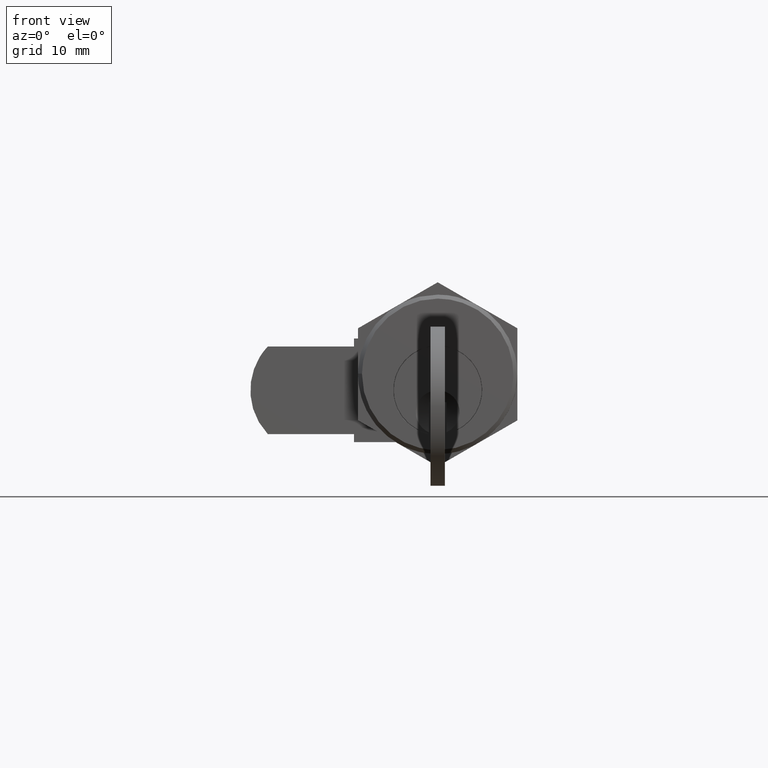
[diagram: clean part render]
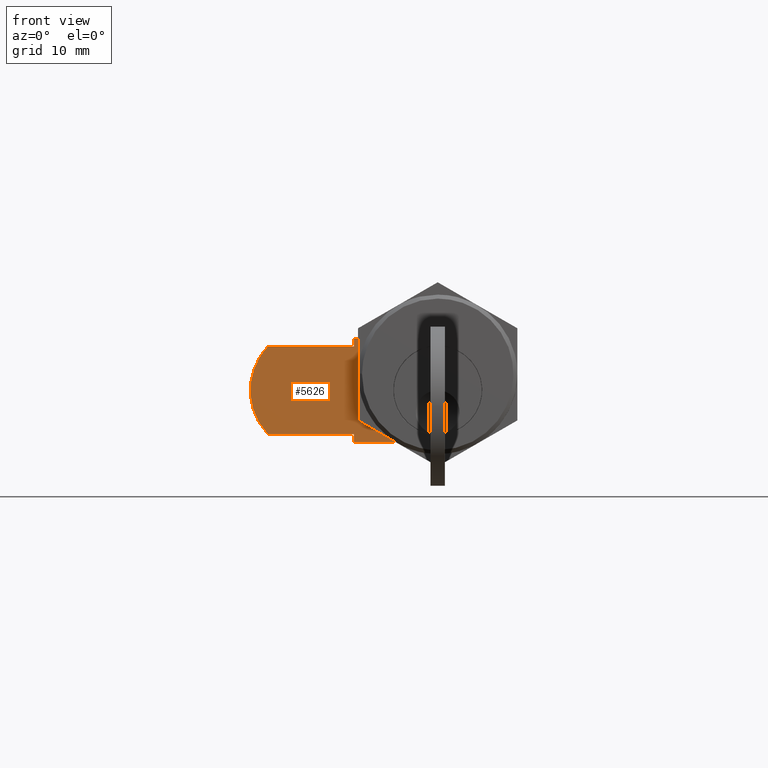
[diagram: same view with one face highlighted and labeled with its STEP entity id]
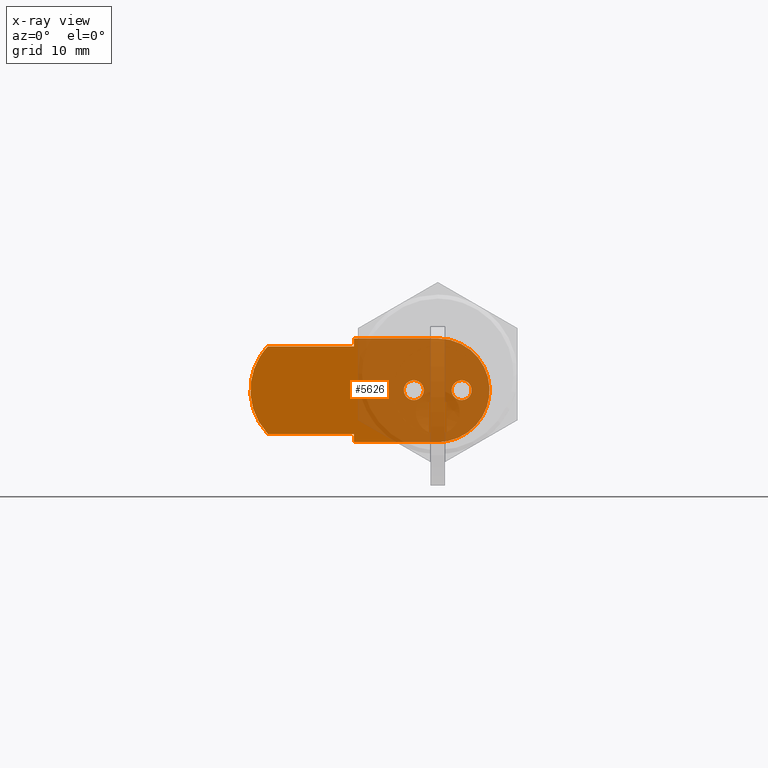
[diagram: x-ray of the same camera — body ghosted, the highlighted face saturated]
A machine part, front view. The second image highlights one B-rep face of the part: STEP entity #5626.
The next image is the same camera in x-ray: the body ghosted, the highlighted face saturated — about 54% of this face is hidden behind the body in this view.
In plain terms, the highlighted face is a freeform B-spline surface patch.
Its self-contained STEP definition (entity closure, byte-faithful):
#4682=CARTESIAN_POINT('',(13.0,2.327687793968156,-3.053800881390067));
#4683=VERTEX_POINT('',#4682);
#4689=CARTESIAN_POINT('',(13.0,3.0,-0.750000000000100));
#4690=VERTEX_POINT('',#4689);
#4691=CARTESIAN_POINT('',(13.0,3.0,-0.750000000000100));
#4692=CARTESIAN_POINT('',(13.000000000000002,1.750000000000000,-0.750000000000100));
#4693=CARTESIAN_POINT('',(13.0,1.750000000000000,-2.000000000000100));
#4694=CARTESIAN_POINT('',(12.999999999999996,1.750000000000000,-2.685243061769576));
#4695=CARTESIAN_POINT('',(12.999999999999998,2.327687793968156,-3.053800881390067));
#4703=(BOUNDED_CURVE()B_SPLINE_CURVE(2,(#4691,#4692,#4693,#4694,#4695),.UNSPECIFIED.,.F.,.U.)B_SPLINE_CURVE_WITH_KNOTS((3,2,3),(0.0,0.250000000000000,0.407950298926096),.UNSPECIFIED.)CURVE()GEOMETRIC_REPRESENTATION_ITEM()RATIONAL_B_SPLINE_CURVE((1.0,0.707106781186548,1.0,0.814949714139956,0.863729412023539))REPRESENTATION_ITEM(''));
#4704=EDGE_CURVE('',#4690,#4683,#4703,.T.);
#4706=CARTESIAN_POINT('',(13.0,4.246146667145903,-2.098073869920484));
#4707=VERTEX_POINT('',#4706);
#4708=CARTESIAN_POINT('',(13.0,4.246146667145903,-2.098073869920484));
#4709=CARTESIAN_POINT('',(12.999999999999998,4.250000000000001,-2.049112634021474));
#4710=CARTESIAN_POINT('',(13.0,4.250000000000000,-2.000000000000100));
#4711=CARTESIAN_POINT('',(13.000000000000002,4.249999999999999,-0.750000000000100));
#4712=CARTESIAN_POINT('',(13.0,3.0,-0.750000000000100));
#4720=(BOUNDED_CURVE()B_SPLINE_CURVE(2,(#4708,#4709,#4710,#4711,#4712),.UNSPECIFIED.,.F.,.U.)B_SPLINE_CURVE_WITH_KNOTS((3,2,3),(0.736331300561075,0.750000000000000,1.0),.UNSPECIFIED.)CURVE()GEOMETRIC_REPRESENTATION_ITEM()RATIONAL_B_SPLINE_CURVE((0.969723356022200,0.983986122497359,1.0,0.707106781186548,1.0))REPRESENTATION_ITEM(''));
#4721=EDGE_CURVE('',#4707,#4690,#4720,.T.);
#4825=CARTESIAN_POINT('',(13.0,3.0,-3.250000000000100));
#4826=VERTEX_POINT('',#4825);
#4827=CARTESIAN_POINT('',(13.0,3.0,-3.250000000000100));
#4828=CARTESIAN_POINT('',(13.0,4.155488114088023,-3.250000000000099));
#4829=CARTESIAN_POINT('',(13.000000000000004,4.246146667145903,-2.098073869920484));
#4837=(BOUNDED_CURVE()B_SPLINE_CURVE(2,(#4827,#4828,#4829),.UNSPECIFIED.,.F.,.U.)B_SPLINE_CURVE_WITH_KNOTS((3,3),(0.500000000000000,0.736331300561075),.UNSPECIFIED.)CURVE()GEOMETRIC_REPRESENTATION_ITEM()RATIONAL_B_SPLINE_CURVE((1.0,0.723120658689190,0.969723356022199))REPRESENTATION_ITEM(''));
#4838=EDGE_CURVE('',#4826,#4707,#4837,.T.);
#4840=CARTESIAN_POINT('',(12.999999999999998,2.327687793968156,-3.053800881390067));
#4841=CARTESIAN_POINT('',(13.000000000000004,2.635215758302382,-3.250000000000100));
#4842=CARTESIAN_POINT('',(13.0,3.0,-3.250000000000100));
#4850=(BOUNDED_CURVE()B_SPLINE_CURVE(2,(#4840,#4841,#4842),.UNSPECIFIED.,.F.,.U.)B_SPLINE_CURVE_WITH_KNOTS((3,3),(0.407950298926096,0.500000000000000),.UNSPECIFIED.)CURVE()GEOMETRIC_REPRESENTATION_ITEM()RATIONAL_B_SPLINE_CURVE((0.863729412023539,0.892157067046592,1.0))REPRESENTATION_ITEM(''));
#4851=EDGE_CURVE('',#4683,#4826,#4850,.T.);
#5020=CARTESIAN_POINT('',(13.0,-1.758163508207287,-2.142625830942344));
#5021=VERTEX_POINT('',#5020);
#5027=CARTESIAN_POINT('',(13.0,-3.0,-3.250000000000100));
#5028=VERTEX_POINT('',#5027);
#5029=CARTESIAN_POINT('',(12.999999999999996,-1.758163508207286,-2.142625830942345));
#5030=CARTESIAN_POINT('',(13.000000000000002,-1.885346242881703,-3.250000000000100));
#5031=CARTESIAN_POINT('',(13.0,-3.0,-3.250000000000100));
#5039=(BOUNDED_CURVE()B_SPLINE_CURVE(2,(#5029,#5030,#5031),.UNSPECIFIED.,.F.,.U.)B_SPLINE_CURVE_WITH_KNOTS((3,3),(0.269767755881186,0.500000000000000),.UNSPECIFIED.)CURVE()GEOMETRIC_REPRESENTATION_ITEM()RATIONAL_B_SPLINE_CURVE((0.957343736451635,0.730266147781585,1.0))REPRESENTATION_ITEM(''));
#5040=EDGE_CURVE('',#5021,#5028,#5039,.T.);
#5042=CARTESIAN_POINT('',(13.0,-4.247668373937785,-2.076312703210731));
#5043=VERTEX_POINT('',#5042);
#5044=CARTESIAN_POINT('',(13.0,-3.0,-3.250000000000100));
#5045=CARTESIAN_POINT('',(13.000000000000002,-4.175880667996962,-3.250000000000100));
#5046=CARTESIAN_POINT('',(13.000000000000005,-4.247668373937785,-2.076312703210731));
#5054=(BOUNDED_CURVE()B_SPLINE_CURVE(2,(#5044,#5045,#5046),.UNSPECIFIED.,.F.,.U.)B_SPLINE_CURVE_WITH_KNOTS((3,3),(0.500000000000000,0.739332681669457),.UNSPECIFIED.)CURVE()GEOMETRIC_REPRESENTATION_ITEM()RATIONAL_B_SPLINE_CURVE((1.0,0.719604321994310,0.976071440353638))REPRESENTATION_ITEM(''));
#5055=EDGE_CURVE('',#5028,#5043,#5054,.T.);
#5154=CARTESIAN_POINT('',(13.0,-3.0,-0.750000000000100));
#5155=VERTEX_POINT('',#5154);
#5156=CARTESIAN_POINT('',(13.000000000000005,-4.247668373937785,-2.076312703210731));
#5157=CARTESIAN_POINT('',(13.0,-4.250000000000000,-2.038191971363760));
#5158=CARTESIAN_POINT('',(13.0,-4.250000000000000,-2.000000000000100));
#5159=CARTESIAN_POINT('',(13.000000000000002,-4.249999999999999,-0.750000000000100));
#5160=CARTESIAN_POINT('',(13.0,-3.0,-0.750000000000100));
#5168=(BOUNDED_CURVE()B_SPLINE_CURVE(2,(#5156,#5157,#5158,#5159,#5160),.UNSPECIFIED.,.F.,.U.)B_SPLINE_CURVE_WITH_KNOTS((3,2,3),(0.739332681669457,0.750000000000000,1.0),.UNSPECIFIED.)CURVE()GEOMETRIC_REPRESENTATION_ITEM()RATIONAL_B_SPLINE_CURVE((0.976071440353638,0.987502459192238,1.0,0.707106781186548,1.0))REPRESENTATION_ITEM(''));
#5169=EDGE_CURVE('',#5043,#5155,#5168,.T.);
#5171=CARTESIAN_POINT('',(13.0,-3.0,-0.750000000000100));
#5172=CARTESIAN_POINT('',(13.000000000000002,-1.750000000000000,-0.750000000000100));
#5173=CARTESIAN_POINT('',(13.0,-1.750000000000000,-2.000000000000100));
#5174=CARTESIAN_POINT('',(12.999999999999998,-1.750000000000000,-2.071546543798675));
#5175=CARTESIAN_POINT('',(13.000000000000004,-1.758163508207287,-2.142625830942344));
#5183=(BOUNDED_CURVE()B_SPLINE_CURVE(2,(#5171,#5172,#5173,#5174,#5175),.UNSPECIFIED.,.F.,.U.)B_SPLINE_CURVE_WITH_KNOTS((3,2,3),(0.0,0.250000000000000,0.269767755881186),.UNSPECIFIED.)CURVE()GEOMETRIC_REPRESENTATION_ITEM()RATIONAL_B_SPLINE_CURVE((1.0,0.707106781186548,1.0,0.976840633404963,0.957343736451635))REPRESENTATION_ITEM(''));
#5184=EDGE_CURVE('',#5155,#5021,#5183,.T.);
#5322=CARTESIAN_POINT('',(13.000000000000121,10.500000000000000,-7.500000000000000));
#5323=VERTEX_POINT('',#5322);
#5324=CARTESIAN_POINT('',(13.000000000000121,21.309475019311201,-7.500000000000000));
#5325=VERTEX_POINT('',#5324);
#5326=CARTESIAN_POINT('',(13.000000000000121,10.500000000000000,-7.500000000000000));
#5327=CARTESIAN_POINT('',(13.000000000000121,21.309475019311201,-7.500000000000000));
#5328=QUASI_UNIFORM_CURVE('',1,(#5326,#5327),.UNSPECIFIED.,.F.,.U.);
#5329=EDGE_CURVE('',#5323,#5325,#5328,.T.);
#5358=CARTESIAN_POINT('',(13.000000000000121,10.500000000000000,-8.500000000000000));
#5359=VERTEX_POINT('',#5358);
#5360=CARTESIAN_POINT('',(13.000000000000121,10.500000000000000,-8.500000000000000));
#5361=CARTESIAN_POINT('',(13.000000000000121,10.500000000000000,-7.500000000000000));
#5362=QUASI_UNIFORM_CURVE('',1,(#5360,#5361),.UNSPECIFIED.,.F.,.U.);
#5363=EDGE_CURVE('',#5359,#5323,#5362,.T.);
#5386=CARTESIAN_POINT('',(13.000000000000121,-1.193991E-015,-8.500000000000101));
#5387=VERTEX_POINT('',#5386);
#5388=CARTESIAN_POINT('',(13.000000000000121,-1.193991E-015,-8.500000000000101));
#5389=CARTESIAN_POINT('',(13.000000000000121,10.500000000000000,-8.500000000000000));
#5390=QUASI_UNIFORM_CURVE('',1,(#5388,#5389),.UNSPECIFIED.,.F.,.U.);
#5391=EDGE_CURVE('',#5387,#5359,#5390,.T.);
#5427=CARTESIAN_POINT('',(13.000000000000121,0.0,4.499999999999900));
#5428=VERTEX_POINT('',#5427);
#5429=CARTESIAN_POINT('',(13.000000000000121,0.0,4.499999999999900));
#5430=CARTESIAN_POINT('',(13.000000000000119,-6.500000000000000,4.499999999999901));
#5431=CARTESIAN_POINT('',(13.000000000000121,-6.500000000000000,-2.000000000000100));
#5432=CARTESIAN_POINT('',(13.000000000000119,-6.500000000000000,-8.500000000000100));
#5433=CARTESIAN_POINT('',(13.000000000000121,0.0,-8.500000000000100));
#5441=(BOUNDED_CURVE()B_SPLINE_CURVE(2,(#5429,#5430,#5431,#5432,#5433),.UNSPECIFIED.,.F.,.U.)B_SPLINE_CURVE_WITH_KNOTS((3,2,3),(0.0,0.500000000000000,1.0),.UNSPECIFIED.)CURVE()GEOMETRIC_REPRESENTATION_ITEM()RATIONAL_B_SPLINE_CURVE((1.0,0.707106781186547,1.0,0.707106781186547,1.0))REPRESENTATION_ITEM(''));
#5442=EDGE_CURVE('',#5428,#5387,#5441,.T.);
#5475=CARTESIAN_POINT('',(13.000000000000121,10.500000000000000,4.499999999999900));
#5476=VERTEX_POINT('',#5475);
#5477=CARTESIAN_POINT('',(13.000000000000121,10.500000000000000,4.499999999999900));
#5478=CARTESIAN_POINT('',(13.000000000000121,0.0,4.499999999999900));
#5479=QUASI_UNIFORM_CURVE('',1,(#5477,#5478),.UNSPECIFIED.,.F.,.U.);
#5480=EDGE_CURVE('',#5476,#5428,#5479,.T.);
#5503=CARTESIAN_POINT('',(13.000000000000121,10.500000000000000,3.499999999999901));
#5504=VERTEX_POINT('',#5503);
#5505=CARTESIAN_POINT('',(13.000000000000121,10.500000000000000,3.499999999999901));
#5506=CARTESIAN_POINT('',(13.000000000000121,10.500000000000000,4.499999999999900));
#5507=QUASI_UNIFORM_CURVE('',1,(#5505,#5506),.UNSPECIFIED.,.F.,.U.);
#5508=EDGE_CURVE('',#5504,#5476,#5507,.T.);
#5531=CARTESIAN_POINT('',(13.000000000000121,21.309475019311101,3.499999999999901));
#5532=VERTEX_POINT('',#5531);
#5533=CARTESIAN_POINT('',(13.000000000000121,21.309475019311101,3.499999999999901));
#5534=CARTESIAN_POINT('',(13.000000000000121,10.500000000000000,3.499999999999901));
#5535=QUASI_UNIFORM_CURVE('',1,(#5533,#5534),.UNSPECIFIED.,.F.,.U.);
#5536=EDGE_CURVE('',#5532,#5504,#5535,.T.);
#5568=CARTESIAN_POINT('',(13.000000000000121,21.309475019311211,-7.500000000000012));
#5569=CARTESIAN_POINT('',(13.000000000000117,26.516485962545477,-2.000000000000004));
#5570=CARTESIAN_POINT('',(13.000000000000121,21.309475019311112,3.499999999999913));
#5578=(BOUNDED_CURVE()B_SPLINE_CURVE(2,(#5568,#5569,#5570),.UNSPECIFIED.,.F.,.U.)CURVE()GEOMETRIC_REPRESENTATION_ITEM()QUASI_UNIFORM_CURVE()RATIONAL_B_SPLINE_CURVE((1.0,0.726184377413895,1.0))REPRESENTATION_ITEM(''));
#5579=EDGE_CURVE('',#5325,#5532,#5578,.T.);
#5599=CARTESIAN_POINT('',(13.0,-7.998499941854124,5.149349974803379));
#5600=CARTESIAN_POINT('',(13.0,24.998500746516701,5.149349974803379));
#5601=CARTESIAN_POINT('',(13.0,-7.998499941854124,-9.149350323490747));
#5602=CARTESIAN_POINT('',(13.0,24.998500746516701,-9.149350323490747));
#5603=B_SPLINE_SURFACE_WITH_KNOTS('',1,1,((#5599,#5601),(#5600,#5602)),.UNSPECIFIED.,.F.,.F.,.U.,(2,2),(2,2),(0.0,32.997000688370832),(0.0,14.298700298294129),.UNSPECIFIED.);
#5604=ORIENTED_EDGE('',*,*,#5579,.F.);
#5605=ORIENTED_EDGE('',*,*,#5329,.F.);
#5606=ORIENTED_EDGE('',*,*,#5363,.F.);
#5607=ORIENTED_EDGE('',*,*,#5391,.F.);
#5608=ORIENTED_EDGE('',*,*,#5442,.F.);
#5609=ORIENTED_EDGE('',*,*,#5480,.F.);
#5610=ORIENTED_EDGE('',*,*,#5508,.F.);
#5611=ORIENTED_EDGE('',*,*,#5536,.F.);
#5612=EDGE_LOOP('',(#5604,#5605,#5606,#5607,#5608,#5609,#5610,#5611));
#5613=FACE_OUTER_BOUND('',#5612,.T.);
#5614=ORIENTED_EDGE('',*,*,#5055,.F.);
#5615=ORIENTED_EDGE('',*,*,#5040,.F.);
#5616=ORIENTED_EDGE('',*,*,#5184,.F.);
#5617=ORIENTED_EDGE('',*,*,#5169,.F.);
#5618=EDGE_LOOP('',(#5614,#5615,#5616,#5617));
#5619=FACE_BOUND('',#5618,.T.);
#5620=ORIENTED_EDGE('',*,*,#4838,.T.);
#5621=ORIENTED_EDGE('',*,*,#4721,.T.);
#5622=ORIENTED_EDGE('',*,*,#4704,.T.);
#5623=ORIENTED_EDGE('',*,*,#4851,.T.);
#5624=EDGE_LOOP('',(#5620,#5621,#5622,#5623));
#5625=FACE_BOUND('',#5624,.T.);
#5626=ADVANCED_FACE('',(#5613,#5619,#5625),#5603,.T.);